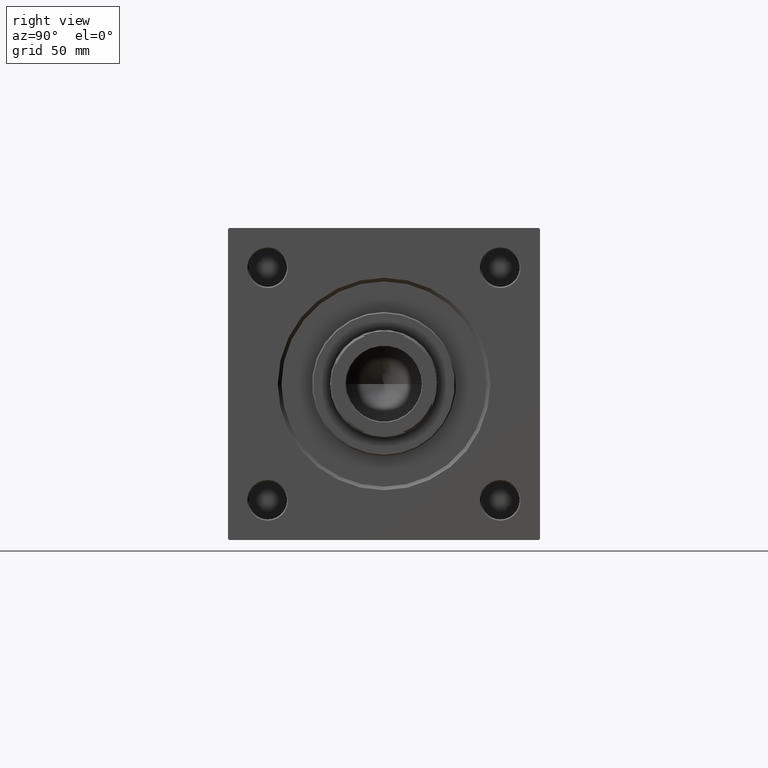
[diagram: clean part render]
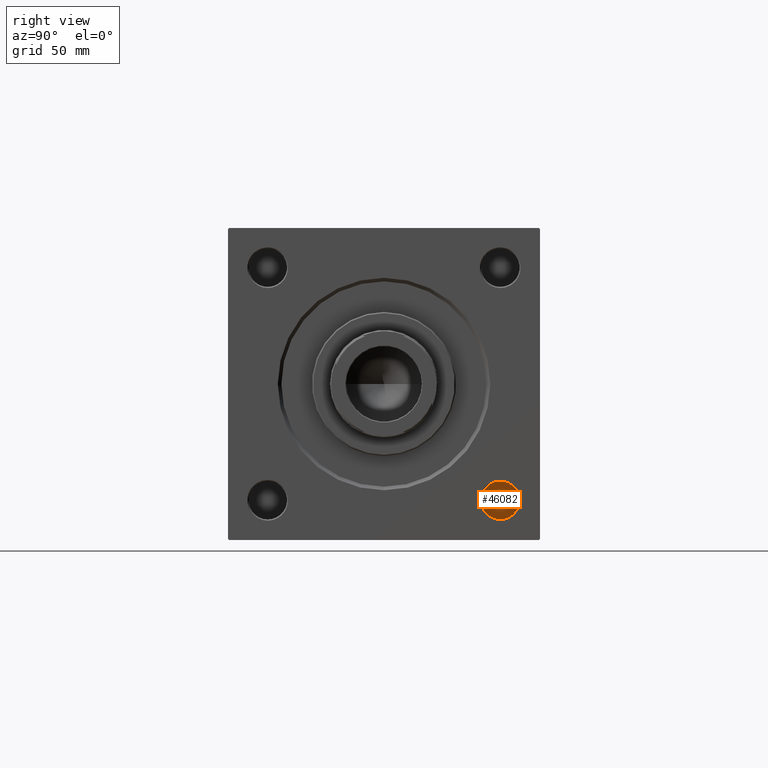
[diagram: same view with one face highlighted and labeled with its STEP entity id]
A machine part, right view. The second image highlights one B-rep face of the part: STEP entity #46082.
In plain terms, the highlighted planar face has unit normal (1, 0, 0).
Its self-contained STEP definition (entity closure, byte-faithful):
#1176 = DIRECTION ( 'NONE',  ( 1.000000000000000000, 0.000000000000000000, 0.000000000000000000 ) ) ;
#3195 = DIRECTION ( 'NONE',  ( 1.000000000000000000, 0.000000000000000000, 0.000000000000000000 ) ) ;
#6039 = DIRECTION ( 'NONE',  ( 0.000000000000000000, 0.000000000000000000, -1.000000000000000000 ) ) ;
#7049 = CARTESIAN_POINT ( 'NONE',  ( 158.0000000000000000, 48.45000000000000995, -48.45000000000001705 ) ) ;
#11309 = DIRECTION ( 'NONE',  ( 1.000000000000000000, 0.000000000000000000, 0.000000000000000000 ) ) ;
#14563 = EDGE_LOOP ( 'NONE', ( #50267, #29831 ) ) ;
#15157 = PLANE ( 'NONE',  #31659 ) ;
#17033 = CIRCLE ( 'NONE', #30087, 8.000000000000000000 ) ;
#17681 = EDGE_CURVE ( 'NONE', #42489, #25851, #43798, .T. ) ;
#18974 = FACE_OUTER_BOUND ( 'NONE', #14563, .T. ) ;
#20497 = CARTESIAN_POINT ( 'NONE',  ( 158.0000000000000000, 48.45000000000000995, -56.45000000000001705 ) ) ;
#21748 = AXIS2_PLACEMENT_3D ( 'NONE', #25003, #1176, #6039 ) ;
#22914 = DIRECTION ( 'NONE',  ( 0.000000000000000000, 0.000000000000000000, -1.000000000000000000 ) ) ;
#23152 = EDGE_CURVE ( 'NONE', #25851, #42489, #17033, .T. ) ;
#25003 = CARTESIAN_POINT ( 'NONE',  ( 158.0000000000000000, 48.45000000000000995, -48.45000000000001705 ) ) ;
#25851 = VERTEX_POINT ( 'NONE', #43025 ) ;
#26914 = DIRECTION ( 'NONE',  ( 0.000000000000000000, 0.000000000000000000, -1.000000000000000000 ) ) ;
#29831 = ORIENTED_EDGE ( 'NONE', *, *, #23152, .T. ) ;
#30087 = AXIS2_PLACEMENT_3D ( 'NONE', #7049, #3195, #22914 ) ;
#30740 = CARTESIAN_POINT ( 'NONE',  ( 158.0000000000000000, 48.45000000000000995, -48.45000000000001705 ) ) ;
#31659 = AXIS2_PLACEMENT_3D ( 'NONE', #30740, #11309, #26914 ) ;
#42489 = VERTEX_POINT ( 'NONE', #20497 ) ;
#43025 = CARTESIAN_POINT ( 'NONE',  ( 158.0000000000000000, 48.45000000000000995, -40.45000000000001705 ) ) ;
#43798 = CIRCLE ( 'NONE', #21748, 8.000000000000000000 ) ;
#46082 = ADVANCED_FACE ( 'NONE', ( #18974 ), #15157, .T. ) ;
#50267 = ORIENTED_EDGE ( 'NONE', *, *, #17681, .T. ) ;